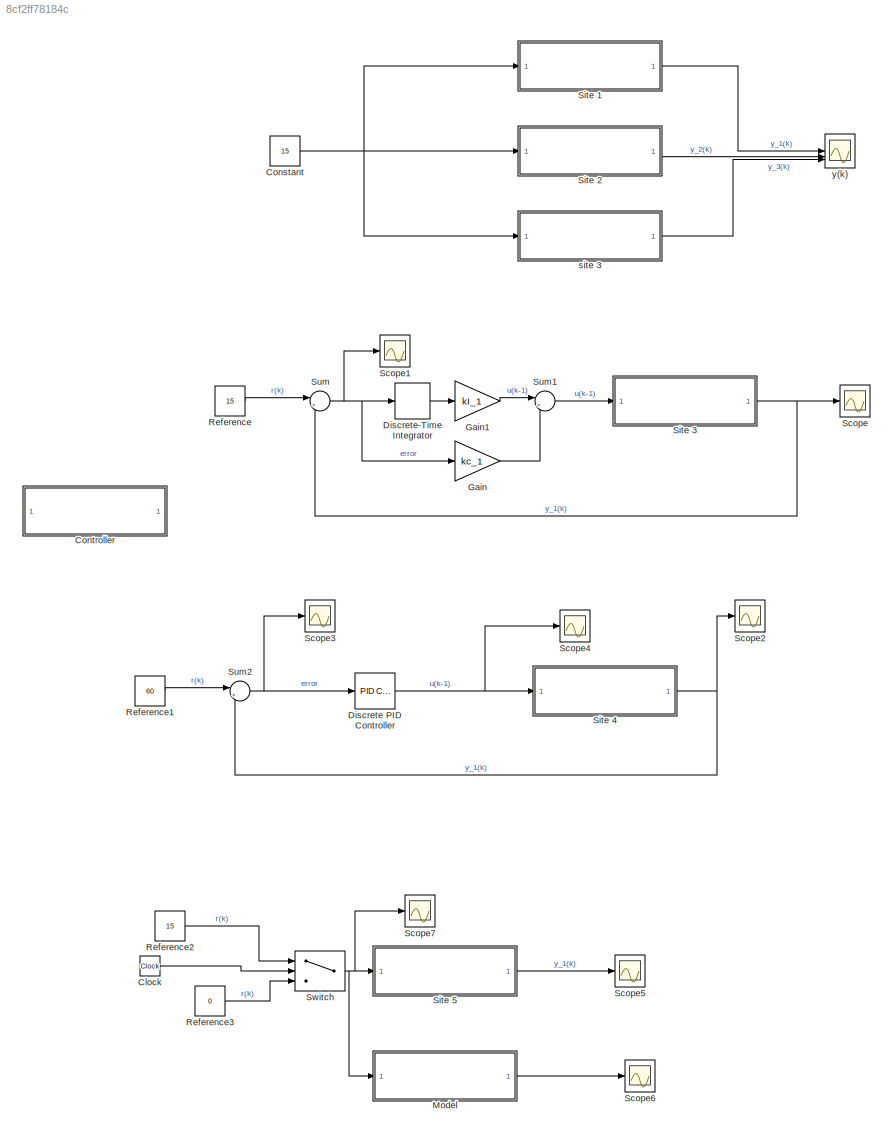
MODEL slx_8cf2ff78184c
KIND model
CONFIG AbsTol = auto
CONFIG EnableMultiTasking = off
CONFIG FixedStep = auto
CONFIG MaxStep = auto
CONFIG MinStep = auto
CONFIG RelTol = 1e-3
CONFIG SampleTimeConstraint = Unconstrained
CONFIG SolverName = FixedStepDiscrete
CONFIG StartTime = 0.0
CONFIG StopTime = 300
BLOCK [Clock] Clock
  Commented = on
BLOCK [Constant] Constant
  Commented = on
  Value = 15
BLOCK [ModelReference] Controller
  Commented = on
  ModelNameDialog = pid_controller.slx
  ModelReferenceVersion = 1.2
BLOCK [Reference] Discrete PID Controller  REF=slpidlib/PID Controller
  LibrarySourceBlock = simulink/Discrete/Discrete PID Controller
  SourceBlock = slpidlib/PID Controller
  SourceType = PID 1dof
BLOCK [DiscreteIntegrator] Discrete-Time Integrator
  Commented = on
  ICPrevOutput = DiscIntNeverNeededParam
  ICPrevScaledInput = DiscIntNeverNeededParam
  InitialConditionSetting = Auto
  SampleTime = -1
BLOCK [Gain] Gain
  Commented = on
  Gain = kc_1
BLOCK [Gain] Gain1
  Commented = on
  Gain = kI_1
BLOCK [ModelReference] Model
  Commented = on
  ModelNameDialog = temp_model_1.slx
  ModelReferenceVersion = 1.3
BLOCK [Constant] Reference
  Commented = on
  Value = 15
BLOCK [Constant] Reference1
  Value = 60
BLOCK [Constant] Reference2
  Commented = on
  SampleTime = 1
  Value = 15
BLOCK [Constant] Reference3
  Commented = on
  SampleTime = 1
  Value = 0
BLOCK [Scope] Scope
  Commented = on
  Floating = off
  NumInputPorts = 1
  ScopeSpecificationString = Simulink.scopes.TimeScopeBlockCfg('CurrentConfiguration', extmgr.ConfigurationSet(extmgr.Configuration('Core','General UI',true),extmgr.Configuration('Core','Source UI',true),extmgr.Configuration('Sources','WiredSimulink',true,'DataLoggingVariableName','ScopeData1'),extmgr.Configuration('Visuals','Time Domain',true,'SerializedDisplays',{struct('MinYLimReal','-6118.3649','MaxYLimReal','30123.53818'...<+1418ch>
BLOCK [Scope] Scope1
  Commented = on
  Floating = off
  NumInputPorts = 1
  ScopeSpecificationString = Simulink.scopes.TimeScopeBlockCfg('CurrentConfiguration', extmgr.ConfigurationSet(extmgr.Configuration('Core','General UI',true),extmgr.Configuration('Core','Source UI',true),extmgr.Configuration('Sources','WiredSimulink',true,'DataLoggingVariableName','ScopeData2'),extmgr.Configuration('Visuals','Time Domain',true,'SerializedDisplays',{struct('MinYLimReal','-30108.53818','MaxYLimReal','6133.3649'...<+1419ch>
BLOCK [Scope] Scope2
  Floating = off
  NumInputPorts = 1
  ScopeSpecificationString = Simulink.scopes.TimeScopeBlockCfg('CurrentConfiguration', extmgr.ConfigurationSet(extmgr.Configuration('Core','General UI',true),extmgr.Configuration('Core','Source UI',true),extmgr.Configuration('Sources','WiredSimulink',true,'DataLoggingVariableName','ScopeData1'),extmgr.Configuration('Visuals','Time Domain',true,'SerializedDisplays',{struct('MinYLimReal','-8.89081','MaxYLimReal','80.01725','YLa...<+1424ch>
BLOCK [Scope] Scope3
  Floating = off
  NumInputPorts = 1
  ScopeSpecificationString = Simulink.scopes.TimeScopeBlockCfg('CurrentConfiguration', extmgr.ConfigurationSet(extmgr.Configuration('Core','General UI',true),extmgr.Configuration('Core','Source UI',true),extmgr.Configuration('Sources','WiredSimulink',true,'DataLoggingVariableName','ScopeData2'),extmgr.Configuration('Visuals','Time Domain',true,'SerializedDisplays',{struct('MinYLimReal','-20.01725','MaxYLimReal','68.89081','YL...<+1424ch>
BLOCK [Scope] Scope4
  Floating = off
  NumInputPorts = 1
  ScopeSpecificationString = Simulink.scopes.TimeScopeBlockCfg('CurrentConfiguration', extmgr.ConfigurationSet(extmgr.Configuration('Core','General UI',true),extmgr.Configuration('Core','Source UI',true),extmgr.Configuration('Sources','WiredSimulink',true,'DataLoggingVariableName','ScopeData3'),extmgr.Configuration('Visuals','Time Domain',true,'SerializedDisplays',{struct('MinYLimReal','6.60526','MaxYLimReal','41.93275','YLab...<+1422ch>
BLOCK [Scope] Scope5
  Commented = on
  Floating = off
  NumInputPorts = 1
  ScopeSpecificationString = Simulink.scopes.TimeScopeBlockCfg('CurrentConfiguration', extmgr.ConfigurationSet(extmgr.Configuration('Core','General UI',true),extmgr.Configuration('Core','Source UI',true),extmgr.Configuration('Sources','WiredSimulink',true,'DataLoggingVariableName','ScopeData1'),extmgr.Configuration('Visuals','Time Domain',true,'SerializedDisplays',{struct('MinYLimReal','-38.43456','MaxYLimReal','345.911','YLa...<+1423ch>
BLOCK [Scope] Scope6
  Commented = on
  Floating = off
  NumInputPorts = 1
  ScopeSpecificationString = Simulink.scopes.TimeScopeBlockCfg('CurrentConfiguration', extmgr.ConfigurationSet(extmgr.Configuration('Core','General UI',true),extmgr.Configuration('Core','Source UI',true),extmgr.Configuration('Sources','WiredSimulink',true,'DataLoggingVariableName','ScopeData2'),extmgr.Configuration('Visuals','Time Domain',true,'SerializedDisplays',{struct('MinYLimReal','-16.38105','MaxYLimReal','147.42947','Y...<+1431ch>
BLOCK [Scope] Scope7
  Commented = on
  Floating = off
  NumInputPorts = 1
  ScopeSpecificationString = Simulink.scopes.TimeScopeBlockCfg('CurrentConfiguration', extmgr.ConfigurationSet(extmgr.Configuration('Core','General UI',true),extmgr.Configuration('Core','Source UI',true),extmgr.Configuration('Sources','WiredSimulink',true,'DataLoggingVariableName','ScopeData3'),extmgr.Configuration('Visuals','Time Domain',true,'SerializedDisplays',{struct('MinYLimReal','-8.0625','MaxYLimReal','72.5625','YLabe...<+1416ch>
BLOCK [ModelReference] Site 1
  Commented = on
  ModelNameDialog = process_model_1.slx
  ModelReferenceVersion = 1.9
BLOCK [ModelReference] Site 2
  Commented = on
  ModelNameDialog = process_model_2.slx
  ModelReferenceVersion = 1.5
BLOCK [ModelReference] Site 3
  Commented = on
  ModelNameDialog = process_model_1.slx
  ModelReferenceVersion = 1.9
BLOCK [ModelReference] Site 4
  ModelNameDialog = process_model_1.slx
  ModelReferenceVersion = 1.10
BLOCK [ModelReference] Site 5
  Commented = on
  ModelNameDialog = process_model_1.slx
  ModelReferenceVersion = 1.9
BLOCK [Sum] Sum
  Commented = on
  Inputs = |+-
BLOCK [Sum] Sum1
  Commented = on
  Inputs = |++
BLOCK [Sum] Sum2
  Inputs = |+-
BLOCK [Switch] Switch
  Commented = on
  InputSameDT = off
  SaturateOnIntegerOverflow = off
  Threshold = 25
BLOCK [ModelReference] site 3
  Commented = on
  ModelNameDialog = process_model_3.slx
  ModelReferenceVersion = 1.5
BLOCK [Scope] y(k)
  Commented = on
  Floating = off
  NumInputPorts = 3
  ScopeSpecificationString = Simulink.scopes.TimeScopeBlockCfg('CurrentConfiguration', extmgr.ConfigurationSet(extmgr.Configuration('Core','General UI',true),extmgr.Configuration('Core','Source UI',true),extmgr.Configuration('Sources','WiredSimulink',true),extmgr.Configuration('Visuals','Time Domain',true,'SerializedDisplays',{struct('MinYLimReal','-9.08478','MaxYLimReal','81.76298','YLabelReal','','MinYLimMag','0.00000','Max...<+1385ch>
LINE Clock:1 -> Switch:2
NET Constant:1 -> Site 1:1, Site 2:1, site 3:1
NET Discrete PID Controller:1 -> Scope4:1, Site 4:1
LINE Discrete-Time Integrator:1 -> Gain1:1
LINE Gain1:1 -> Sum1:1
LINE Gain:1 -> Sum1:2
LINE Model:1 -> Scope6:1
LINE Reference1:1 -> Sum2:1
LINE Reference2:1 -> Switch:1
LINE Reference3:1 -> Switch:3
LINE Reference:1 -> Sum:1
LINE Site 1:1 -> y(k):1
LINE Site 2:1 -> y(k):2
NET Site 3:1 -> Scope:1, Sum:2
NET Site 4:1 -> Scope2:1, Sum2:2
LINE Site 5:1 -> Scope5:1
LINE Sum1:1 -> Site 3:1
NET Sum2:1 -> Discrete PID Controller:1, Scope3:1
NET Sum:1 -> Discrete-Time Integrator:1, Gain:1, Scope1:1
NET Switch:1 -> Model:1, Scope7:1, Site 5:1
LINE site 3:1 -> y(k):3
note: NET lines group one-source signal fan-out (src -> all destinations, sorted); 1:1 wires keep LINE
